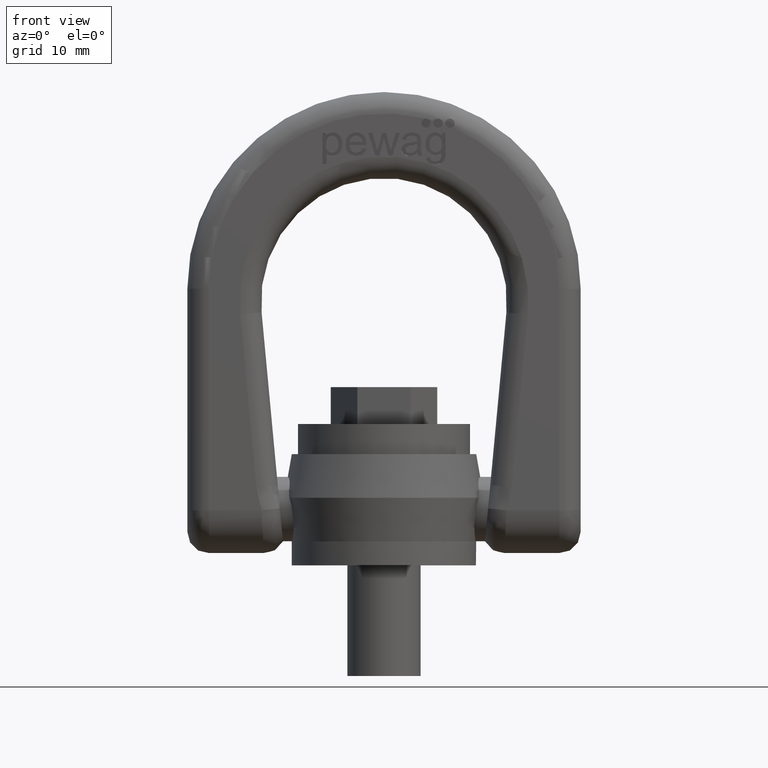
[diagram: clean part render]
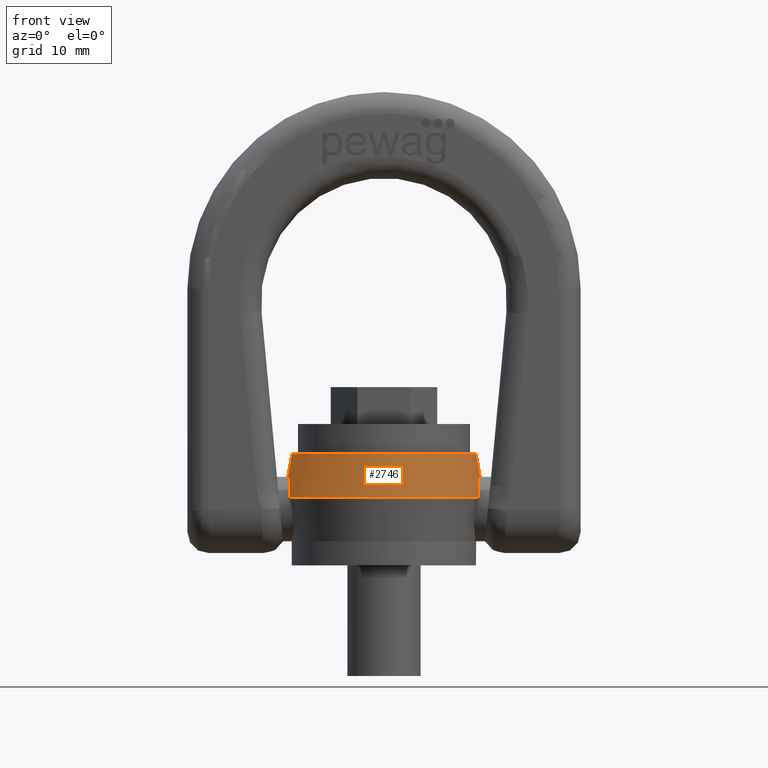
[diagram: same view with one face highlighted and labeled with its STEP entity id]
A machine part, front view. The second image highlights one B-rep face of the part: STEP entity #2746.
In plain terms, the highlighted conical surface has half-angle 10 deg.
Its self-contained STEP definition (entity closure, byte-faithful):
#2412=CONICAL_SURFACE('',#5627,16.2519215630301,10.);
#2746=ADVANCED_FACE('',(#3011,#3012),#2412,.T.);
#3011=FACE_BOUND('',#3072,.T.);
#3012=FACE_BOUND('',#3073,.T.);
#3072=EDGE_LOOP('',(#3346));
#3073=EDGE_LOOP('',(#3347));
#3346=ORIENTED_EDGE('',*,*,#4956,.T.);
#3347=ORIENTED_EDGE('',*,*,#4955,.F.);
#4553=VERTEX_POINT('',#6628);
#4554=VERTEX_POINT('',#6631);
#4955=EDGE_CURVE('',#4553,#4553,#5561,.T.);
#4956=EDGE_CURVE('',#4554,#4554,#5562,.T.);
#5561=CIRCLE('',#5624,16.2519215630301);
#5562=CIRCLE('',#5626,15.);
#5624=AXIS2_PLACEMENT_3D('',#6627,#5842,#5843);
#5626=AXIS2_PLACEMENT_3D('',#6630,#5846,#5847);
#5627=AXIS2_PLACEMENT_3D('',#6632,#5848,#5849);
#5842=DIRECTION('',(0.,0.,-1.));
#5843=DIRECTION('',(-1.,0.,0.));
#5846=DIRECTION('',(0.,0.,-1.));
#5847=DIRECTION('',(-1.,0.,0.));
#5848=DIRECTION('',(0.,0.,-1.));
#5849=DIRECTION('',(-1.,0.,4.50392918309196E-17));
#6627=CARTESIAN_POINT('',(0.,0.,11.));
#6628=CARTESIAN_POINT('',(-16.2519215630301,0.,11.));
#6630=CARTESIAN_POINT('',(0.,0.,18.1));
#6631=CARTESIAN_POINT('',(-15.,0.,18.1));
#6632=CARTESIAN_POINT('',(0.,0.,11.));